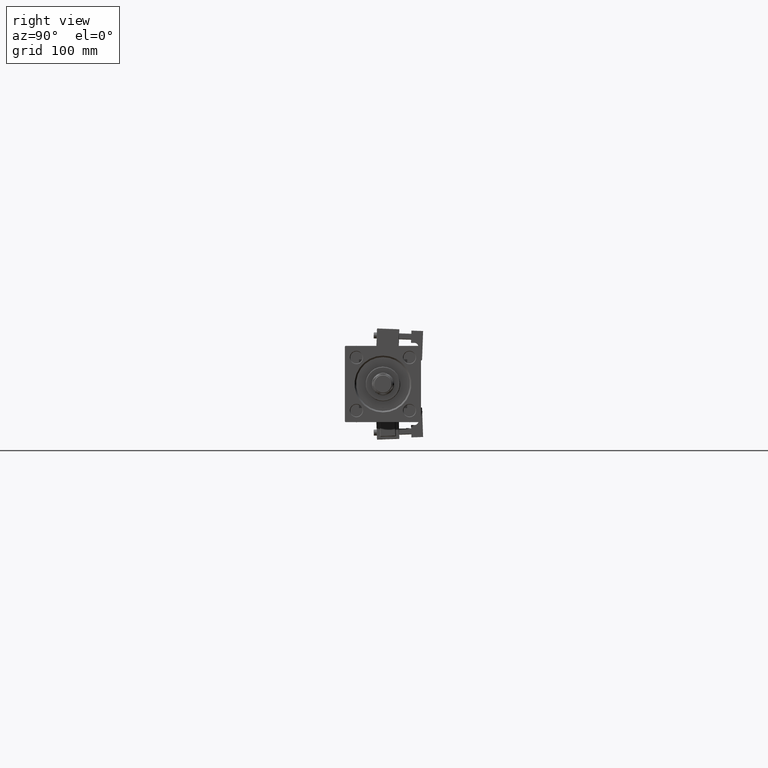
[diagram: clean part render]
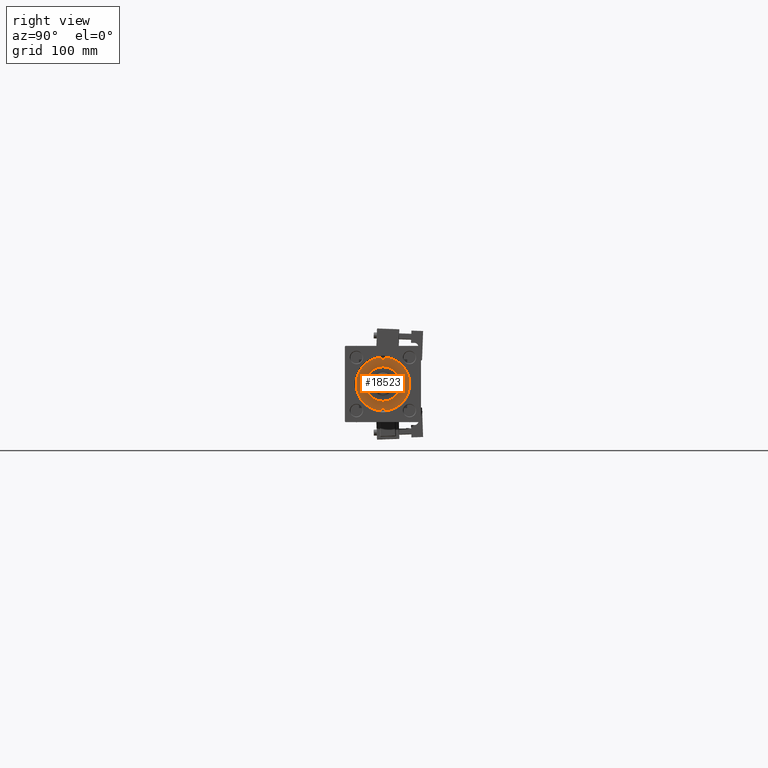
[diagram: same view with one face highlighted and labeled with its STEP entity id]
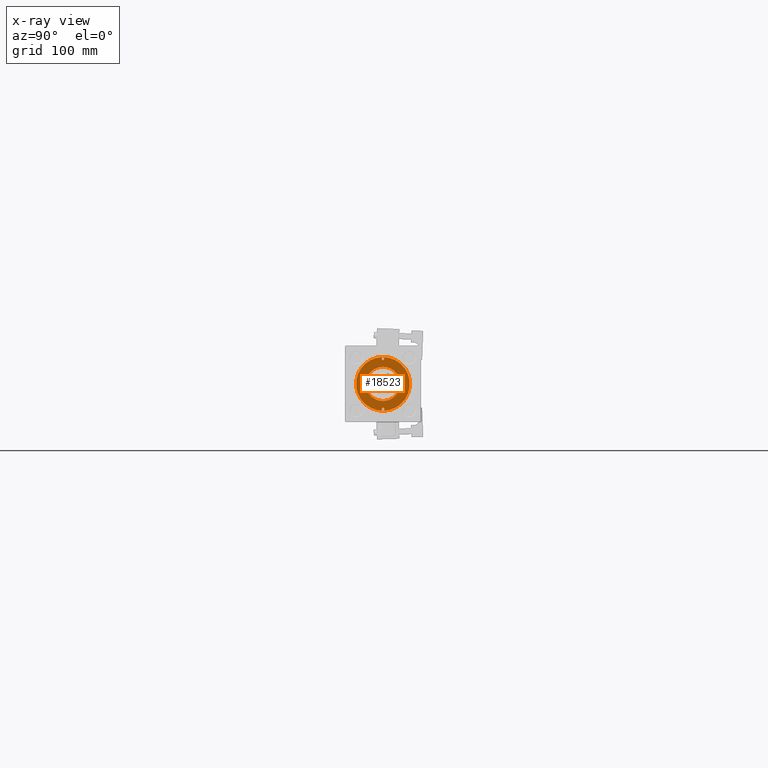
[diagram: x-ray of the same camera — body ghosted, the highlighted face saturated]
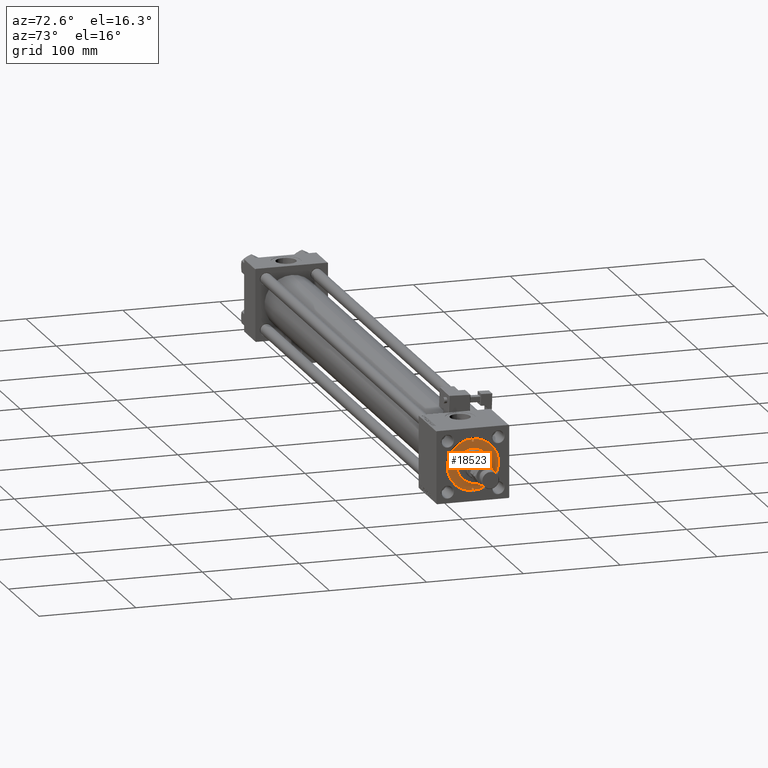
[diagram: same view with one face highlighted and labeled with its STEP entity id]
A machine part, right view. The second image highlights one B-rep face of the part: STEP entity #18523.
The next image is the same camera in x-ray: the body ghosted, the highlighted face saturated — about 0% of this face is hidden behind the body in this view.
A second angle (auxiliary view) of the same face is appended — the face is thin or edge-on in the first view.
In plain terms, the highlighted planar face has unit normal (1, 0, 0).
Its self-contained STEP definition (entity closure, byte-faithful):
#1477 = DIRECTION ( 'NONE',  ( 0.000000000000000000, 0.000000000000000000, 1.000000000000000000 ) ) ;
#2883 = EDGE_CURVE ( 'NONE', #37453, #36997, #21073, .T. ) ;
#4317 = AXIS2_PLACEMENT_3D ( 'NONE', #11907, #23970, #53032 ) ;
#4740 = CIRCLE ( 'NONE', #35382, 26.50000000000000355 ) ;
#4770 = CARTESIAN_POINT ( 'NONE',  ( -24.75000000000000000, 0.000000000000000000, 28.69999999999999929 ) ) ;
#5145 = CIRCLE ( 'NONE', #34060, 1.250000000000001110 ) ;
#5568 = DIRECTION ( 'NONE',  ( 1.000000000000000000, 0.000000000000000000, 0.000000000000000000 ) ) ;
#7374 = FACE_BOUND ( 'NONE', #8133, .T. ) ;
#7565 = CARTESIAN_POINT ( 'NONE',  ( 26.50000000000000355, 3.245314017740486554E-15, 28.69999999999999929 ) ) ;
#8133 = EDGE_LOOP ( 'NONE', ( #8929, #50021 ) ) ;
#8929 = ORIENTED_EDGE ( 'NONE', *, *, #38348, .F. ) ;
#9231 = CIRCLE ( 'NONE', #42490, 26.50000000000000355 ) ;
#10307 = CARTESIAN_POINT ( 'NONE',  ( -23.50000000000000000, 0.000000000000000000, 28.69999999999999929 ) ) ;
#10383 = EDGE_LOOP ( 'NONE', ( #36112, #51955 ) ) ;
#10716 = AXIS2_PLACEMENT_3D ( 'NONE', #27933, #16135, #40821 ) ;
#11080 = CARTESIAN_POINT ( 'NONE',  ( 0.000000000000000000, 0.000000000000000000, 28.69999999999999929 ) ) ;
#11907 = CARTESIAN_POINT ( 'NONE',  ( 0.000000000000000000, 0.000000000000000000, 28.69999999999999929 ) ) ;
#12263 = CARTESIAN_POINT ( 'NONE',  ( 24.75000000000000000, 0.000000000000000000, 28.69999999999999929 ) ) ;
#12626 = EDGE_CURVE ( 'NONE', #17585, #24007, #34447, .T. ) ;
#13522 = DIRECTION ( 'NONE',  ( 0.000000000000000000, 0.000000000000000000, 1.000000000000000000 ) ) ;
#15159 = CARTESIAN_POINT ( 'NONE',  ( 0.000000000000000000, 0.000000000000000000, 28.69999999999999929 ) ) ;
#15695 = ORIENTED_EDGE ( 'NONE', *, *, #40464, .F. ) ;
#15806 = CARTESIAN_POINT ( 'NONE',  ( -17.00000000000000000, 0.000000000000000000, 28.69999999999999929 ) ) ;
#15833 = DIRECTION ( 'NONE',  ( 1.000000000000000000, 0.000000000000000000, 0.000000000000000000 ) ) ;
#16135 = DIRECTION ( 'NONE',  ( 0.000000000000000000, 0.000000000000000000, 1.000000000000000000 ) ) ;
#17309 = AXIS2_PLACEMENT_3D ( 'NONE', #24211, #40933, #40670 ) ;
#17585 = VERTEX_POINT ( 'NONE', #17689 ) ;
#17651 = CARTESIAN_POINT ( 'NONE',  ( -26.00000000000000355, 1.530808498934188859E-16, 28.69999999999999929 ) ) ;
#17689 = CARTESIAN_POINT ( 'NONE',  ( 23.50000000000000000, 1.530808498934188859E-16, 28.69999999999999929 ) ) ;
#17923 = EDGE_CURVE ( 'NONE', #29058, #48973, #4740, .T. ) ;
#18184 = DIRECTION ( 'NONE',  ( 1.000000000000000000, 0.000000000000000000, 0.000000000000000000 ) ) ;
#18523 = ADVANCED_FACE ( 'NONE', ( #49564, #32048, #7374, #49303 ), #45713, .T. ) ;
#19554 = CARTESIAN_POINT ( 'NONE',  ( 24.75000000000000000, 0.000000000000000000, 28.69999999999999929 ) ) ;
#20215 = EDGE_LOOP ( 'NONE', ( #39738, #51900 ) ) ;
#20663 = EDGE_LOOP ( 'NONE', ( #15695, #47538 ) ) ;
#20710 = CIRCLE ( 'NONE', #51347, 1.250000000000001110 ) ;
#21073 = CIRCLE ( 'NONE', #25444, 17.00000000000000000 ) ;
#22393 = VERTEX_POINT ( 'NONE', #10307 ) ;
#23970 = DIRECTION ( 'NONE',  ( 0.000000000000000000, 0.000000000000000000, 1.000000000000000000 ) ) ;
#24007 = VERTEX_POINT ( 'NONE', #50432 ) ;
#24211 = CARTESIAN_POINT ( 'NONE',  ( -24.75000000000000000, 0.000000000000000000, 28.69999999999999929 ) ) ;
#25444 = AXIS2_PLACEMENT_3D ( 'NONE', #15159, #45017, #35457 ) ;
#27185 = CARTESIAN_POINT ( 'NONE',  ( 17.00000000000000000, 2.081899558550500280E-15, 28.69999999999999929 ) ) ;
#27933 = CARTESIAN_POINT ( 'NONE',  ( 0.000000000000000000, 0.000000000000000000, 28.69999999999999929 ) ) ;
#28975 = DIRECTION ( 'NONE',  ( 0.000000000000000000, 0.000000000000000000, 1.000000000000000000 ) ) ;
#29058 = VERTEX_POINT ( 'NONE', #7565 ) ;
#29270 = EDGE_CURVE ( 'NONE', #48973, #29058, #9231, .T. ) ;
#29967 = CARTESIAN_POINT ( 'NONE',  ( 0.000000000000000000, 0.000000000000000000, 28.69999999999999929 ) ) ;
#32048 = FACE_BOUND ( 'NONE', #20663, .T. ) ;
#32171 = DIRECTION ( 'NONE',  ( 1.000000000000000000, 0.000000000000000000, 0.000000000000000000 ) ) ;
#34060 = AXIS2_PLACEMENT_3D ( 'NONE', #19554, #53548, #40121 ) ;
#34393 = EDGE_CURVE ( 'NONE', #22393, #53292, #50574, .T. ) ;
#34447 = CIRCLE ( 'NONE', #37071, 1.250000000000001110 ) ;
#35382 = AXIS2_PLACEMENT_3D ( 'NONE', #29967, #13522, #5568 ) ;
#35457 = DIRECTION ( 'NONE',  ( 1.000000000000000000, 0.000000000000000000, 0.000000000000000000 ) ) ;
#36112 = ORIENTED_EDGE ( 'NONE', *, *, #29270, .T. ) ;
#36997 = VERTEX_POINT ( 'NONE', #15806 ) ;
#37071 = AXIS2_PLACEMENT_3D ( 'NONE', #12263, #28975, #15833 ) ;
#37453 = VERTEX_POINT ( 'NONE', #27185 ) ;
#38348 = EDGE_CURVE ( 'NONE', #36997, #37453, #43723, .T. ) ;
#39738 = ORIENTED_EDGE ( 'NONE', *, *, #34393, .F. ) ;
#39868 = DIRECTION ( 'NONE',  ( 0.000000000000000000, 0.000000000000000000, 1.000000000000000000 ) ) ;
#40121 = DIRECTION ( 'NONE',  ( 1.000000000000000000, 0.000000000000000000, 0.000000000000000000 ) ) ;
#40464 = EDGE_CURVE ( 'NONE', #24007, #17585, #5145, .T. ) ;
#40670 = DIRECTION ( 'NONE',  ( 1.000000000000000000, 0.000000000000000000, 0.000000000000000000 ) ) ;
#40821 = DIRECTION ( 'NONE',  ( 1.000000000000000000, 0.000000000000000000, -0.000000000000000000 ) ) ;
#40933 = DIRECTION ( 'NONE',  ( 0.000000000000000000, 0.000000000000000000, 1.000000000000000000 ) ) ;
#42490 = AXIS2_PLACEMENT_3D ( 'NONE', #11080, #39868, #32171 ) ;
#43723 = CIRCLE ( 'NONE', #4317, 17.00000000000000000 ) ;
#45017 = DIRECTION ( 'NONE',  ( 0.000000000000000000, 0.000000000000000000, 1.000000000000000000 ) ) ;
#45713 = PLANE ( 'NONE',  #10716 ) ;
#46541 = EDGE_CURVE ( 'NONE', #53292, #22393, #20710, .T. ) ;
#47538 = ORIENTED_EDGE ( 'NONE', *, *, #12626, .F. ) ;
#47650 = CARTESIAN_POINT ( 'NONE',  ( -26.50000000000000355, 0.000000000000000000, 28.69999999999999929 ) ) ;
#48973 = VERTEX_POINT ( 'NONE', #47650 ) ;
#49303 = FACE_OUTER_BOUND ( 'NONE', #10383, .T. ) ;
#49564 = FACE_BOUND ( 'NONE', #20215, .T. ) ;
#50021 = ORIENTED_EDGE ( 'NONE', *, *, #2883, .F. ) ;
#50432 = CARTESIAN_POINT ( 'NONE',  ( 26.00000000000000355, 0.000000000000000000, 28.69999999999999929 ) ) ;
#50574 = CIRCLE ( 'NONE', #17309, 1.250000000000001110 ) ;
#51347 = AXIS2_PLACEMENT_3D ( 'NONE', #4770, #1477, #18184 ) ;
#51900 = ORIENTED_EDGE ( 'NONE', *, *, #46541, .F. ) ;
#51955 = ORIENTED_EDGE ( 'NONE', *, *, #17923, .T. ) ;
#53032 = DIRECTION ( 'NONE',  ( 1.000000000000000000, 0.000000000000000000, 0.000000000000000000 ) ) ;
#53292 = VERTEX_POINT ( 'NONE', #17651 ) ;
#53548 = DIRECTION ( 'NONE',  ( 0.000000000000000000, 0.000000000000000000, 1.000000000000000000 ) ) ;